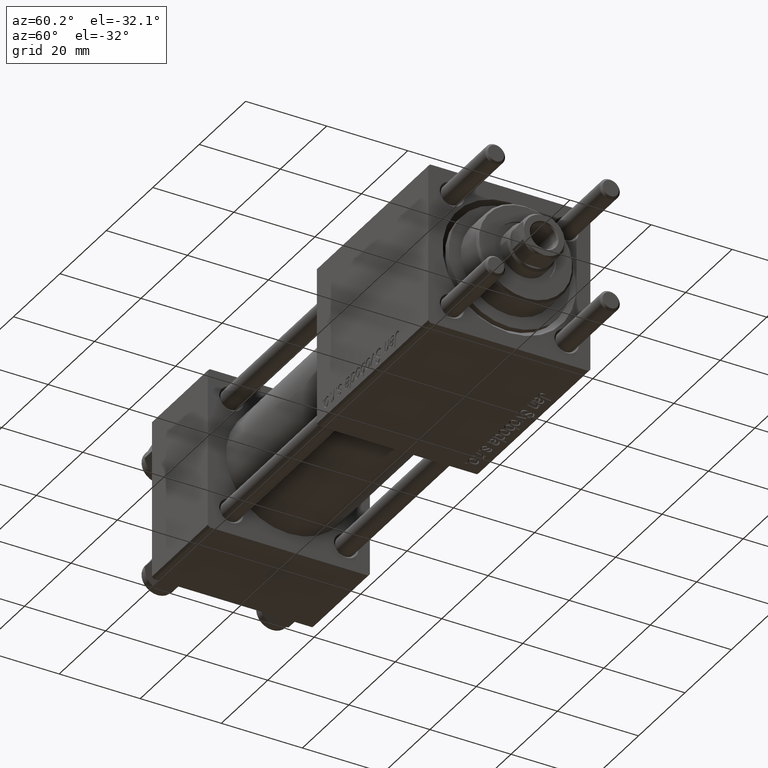
[diagram: clean part render]
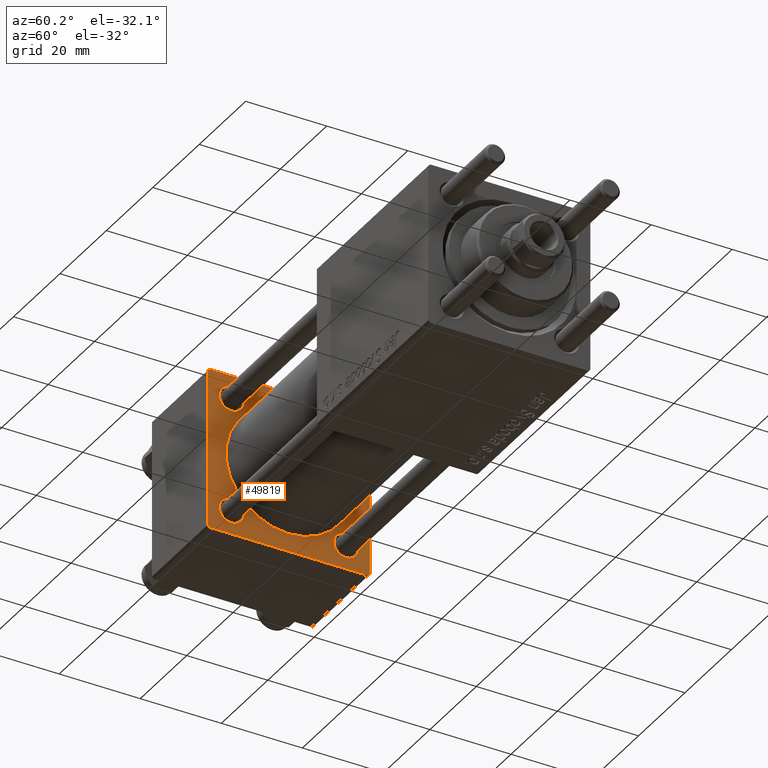
[diagram: same view with one face highlighted and labeled with its STEP entity id]
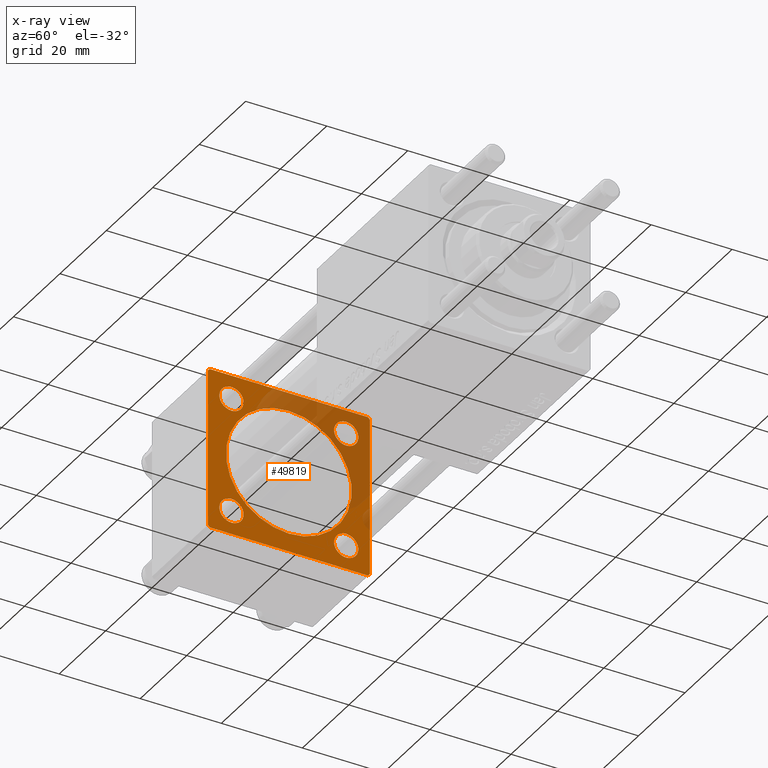
[diagram: x-ray of the same camera — body ghosted, the highlighted face saturated]
A machine part, auxiliary view. The second image highlights one B-rep face of the part: STEP entity #49819.
The next image is the same camera in x-ray: the body ghosted, the highlighted face saturated — about 32% of this face is hidden behind the body in this view.
In plain terms, the highlighted planar face has unit normal (-1, 0, 0).
Its self-contained STEP definition (entity closure, byte-faithful):
#128 = DIRECTION ( 'NONE',  ( -1.000000000000000000, -0.000000000000000000, -0.000000000000000000 ) ) ;
#132 = VECTOR ( 'NONE', #16307, 1000.000000000000000 ) ;
#511 = EDGE_CURVE ( 'NONE', #42500, #33512, #22428, .T. ) ;
#925 = AXIS2_PLACEMENT_3D ( 'NONE', #51825, #16252, #47812 ) ;
#1067 = EDGE_CURVE ( 'NONE', #15590, #41594, #18827, .T. ) ;
#1165 = VERTEX_POINT ( 'NONE', #52244 ) ;
#1591 = ORIENTED_EDGE ( 'NONE', *, *, #19843, .T. ) ;
#1783 = DIRECTION ( 'NONE',  ( 0.000000000000000000, 0.000000000000000000, 1.000000000000000000 ) ) ;
#2221 = AXIS2_PLACEMENT_3D ( 'NONE', #25719, #7680, #38924 ) ;
#2244 = CARTESIAN_POINT ( 'NONE',  ( 24.00000000000000000, -14.14999999999999503, 14.15000000000000391 ) ) ;
#2322 = EDGE_CURVE ( 'NONE', #35675, #16254, #23401, .T. ) ;
#2517 = EDGE_LOOP ( 'NONE', ( #3678, #41603 ) ) ;
#3333 = PLANE ( 'NONE',  #45700 ) ;
#3678 = ORIENTED_EDGE ( 'NONE', *, *, #2322, .T. ) ;
#3758 = CARTESIAN_POINT ( 'NONE',  ( 24.00000000000000000, 20.00000000000000000, -19.50000000000002132 ) ) ;
#4039 = LINE ( 'NONE', #3758, #16350 ) ;
#4230 = CARTESIAN_POINT ( 'NONE',  ( 24.00000000000000000, 20.00000000000000000, -19.50000000000002132 ) ) ;
#4286 = DIRECTION ( 'NONE',  ( 0.000000000000000000, 0.000000000000000000, 1.000000000000000000 ) ) ;
#4531 = EDGE_CURVE ( 'NONE', #27124, #29716, #4039, .T. ) ;
#4918 = ORIENTED_EDGE ( 'NONE', *, *, #19863, .T. ) ;
#4986 = VERTEX_POINT ( 'NONE', #47766 ) ;
#7238 = EDGE_CURVE ( 'NONE', #1165, #20543, #51223, .T. ) ;
#7344 = VECTOR ( 'NONE', #56791, 1000.000000000000000 ) ;
#7404 = ORIENTED_EDGE ( 'NONE', *, *, #8013, .T. ) ;
#7680 = DIRECTION ( 'NONE',  ( 1.000000000000000000, 0.000000000000000000, 0.000000000000000000 ) ) ;
#7729 = CARTESIAN_POINT ( 'NONE',  ( 24.00000000000000000, 14.14999999999999858, 11.15000000000002700 ) ) ;
#8013 = EDGE_CURVE ( 'NONE', #22103, #18522, #38925, .T. ) ;
#8364 = DIRECTION ( 'NONE',  ( -0.000000000000000000, 0.7071067811865524577, 0.7071067811865426878 ) ) ;
#8609 = DIRECTION ( 'NONE',  ( -1.000000000000000000, -0.000000000000000000, -0.000000000000000000 ) ) ;
#8786 = CARTESIAN_POINT ( 'NONE',  ( 24.00000000000000000, 0.000000000000000000, 0.000000000000000000 ) ) ;
#9710 = ORIENTED_EDGE ( 'NONE', *, *, #7238, .T. ) ;
#10119 = CARTESIAN_POINT ( 'NONE',  ( 24.00000000000000000, -20.00000000000000355, 19.99999999999998934 ) ) ;
#10169 = EDGE_CURVE ( 'NONE', #4986, #29716, #47633, .T. ) ;
#10492 = DIRECTION ( 'NONE',  ( 0.000000000000000000, -1.000000000000000000, 1.734723475976807094E-16 ) ) ;
#10878 = AXIS2_PLACEMENT_3D ( 'NONE', #15297, #32779, #50306 ) ;
#11687 = DIRECTION ( 'NONE',  ( 0.000000000000000000, -0.7071067811865425767, 0.7071067811865525687 ) ) ;
#12188 = EDGE_LOOP ( 'NONE', ( #16168, #43564 ) ) ;
#12245 = DIRECTION ( 'NONE',  ( 0.000000000000000000, 0.000000000000000000, 1.000000000000000000 ) ) ;
#12491 = CARTESIAN_POINT ( 'NONE',  ( 24.00000000000000000, 14.14999999999999858, -14.15000000000000036 ) ) ;
#12567 = LINE ( 'NONE', #33800, #21211 ) ;
#13088 = FACE_BOUND ( 'NONE', #13321, .T. ) ;
#13321 = EDGE_LOOP ( 'NONE', ( #19512, #33985 ) ) ;
#14390 = VECTOR ( 'NONE', #10492, 1000.000000000000000 ) ;
#14444 = ORIENTED_EDGE ( 'NONE', *, *, #44357, .T. ) ;
#15297 = CARTESIAN_POINT ( 'NONE',  ( 24.00000000000000000, -14.14999999999999503, 14.15000000000000391 ) ) ;
#15563 = CARTESIAN_POINT ( 'NONE',  ( 24.00000000000000000, 14.14999999999999858, -11.15000000000002700 ) ) ;
#15590 = VERTEX_POINT ( 'NONE', #24841 ) ;
#15592 = CIRCLE ( 'NONE', #26537, 15.50000000000000000 ) ;
#15653 = EDGE_CURVE ( 'NONE', #16254, #35675, #27471, .T. ) ;
#15880 = CARTESIAN_POINT ( 'NONE',  ( 24.00000000000000000, -20.00000000000000355, 19.49999999999998224 ) ) ;
#16168 = ORIENTED_EDGE ( 'NONE', *, *, #1067, .T. ) ;
#16252 = DIRECTION ( 'NONE',  ( -1.000000000000000000, -0.000000000000000000, -0.000000000000000000 ) ) ;
#16254 = VERTEX_POINT ( 'NONE', #25470 ) ;
#16307 = DIRECTION ( 'NONE',  ( 0.000000000000000000, 8.673617379884036705E-17, -1.000000000000000000 ) ) ;
#16350 = VECTOR ( 'NONE', #8364, 1000.000000000000000 ) ;
#17104 = CARTESIAN_POINT ( 'NONE',  ( 24.00000000000000000, -14.14999999999999503, -14.15000000000000391 ) ) ;
#17291 = CARTESIAN_POINT ( 'NONE',  ( 24.00000000000000000, -14.14999999999999503, 17.15000000000000924 ) ) ;
#17937 = DIRECTION ( 'NONE',  ( -1.000000000000000000, -0.000000000000000000, -0.000000000000000000 ) ) ;
#18097 = ORIENTED_EDGE ( 'NONE', *, *, #48857, .F. ) ;
#18286 = VECTOR ( 'NONE', #39507, 1000.000000000000114 ) ;
#18522 = VERTEX_POINT ( 'NONE', #15880 ) ;
#18730 = AXIS2_PLACEMENT_3D ( 'NONE', #31544, #8609, #4286 ) ;
#18733 = ORIENTED_EDGE ( 'NONE', *, *, #10169, .F. ) ;
#18827 = CIRCLE ( 'NONE', #20654, 2.999999999999976463 ) ;
#18841 = CARTESIAN_POINT ( 'NONE',  ( 24.00000000000000000, 14.14999999999999858, 14.15000000000000036 ) ) ;
#19512 = ORIENTED_EDGE ( 'NONE', *, *, #28569, .T. ) ;
#19545 = EDGE_CURVE ( 'NONE', #41594, #15590, #40471, .T. ) ;
#19586 = CARTESIAN_POINT ( 'NONE',  ( 24.00000000000000000, 14.14999999999999858, 17.14999999999997726 ) ) ;
#19839 = EDGE_LOOP ( 'NONE', ( #23303, #44438, #18733, #14444, #31980, #7404, #1591, #4918 ) ) ;
#19843 = EDGE_CURVE ( 'NONE', #18522, #49567, #49430, .T. ) ;
#19863 = EDGE_CURVE ( 'NONE', #49567, #48618, #12567, .T. ) ;
#19982 = CARTESIAN_POINT ( 'NONE',  ( 24.00000000000000000, -7.038826752868131828E-16, -15.50000000000000000 ) ) ;
#20543 = VERTEX_POINT ( 'NONE', #17291 ) ;
#20654 = AXIS2_PLACEMENT_3D ( 'NONE', #24405, #41090, #1783 ) ;
#21211 = VECTOR ( 'NONE', #28144, 1000.000000000000000 ) ;
#21449 = CIRCLE ( 'NONE', #2221, 15.50000000000000000 ) ;
#21680 = DIRECTION ( 'NONE',  ( -0.000000000000000000, 0.000000000000000000, 1.000000000000000000 ) ) ;
#21716 = CARTESIAN_POINT ( 'NONE',  ( 24.00000000000000000, -20.00000000000000355, 19.49999999999998224 ) ) ;
#21775 = CARTESIAN_POINT ( 'NONE',  ( 24.00000000000000000, 20.00000000000000000, 20.00000000000000000 ) ) ;
#21917 = DIRECTION ( 'NONE',  ( 0.000000000000000000, 0.000000000000000000, 1.000000000000000000 ) ) ;
#22103 = VERTEX_POINT ( 'NONE', #55718 ) ;
#22428 = CIRCLE ( 'NONE', #27937, 2.999999999999973355 ) ;
#23303 = ORIENTED_EDGE ( 'NONE', *, *, #41307, .F. ) ;
#23401 = CIRCLE ( 'NONE', #35325, 3.000000000000004441 ) ;
#24405 = CARTESIAN_POINT ( 'NONE',  ( 24.00000000000000000, 14.14999999999999858, -14.15000000000000036 ) ) ;
#24691 = VERTEX_POINT ( 'NONE', #39060 ) ;
#24841 = CARTESIAN_POINT ( 'NONE',  ( 24.00000000000000000, 14.14999999999999858, -17.14999999999997726 ) ) ;
#25470 = CARTESIAN_POINT ( 'NONE',  ( 24.00000000000000000, -14.14999999999999503, -11.15000000000000036 ) ) ;
#25682 = FACE_BOUND ( 'NONE', #12188, .T. ) ;
#25719 = CARTESIAN_POINT ( 'NONE',  ( 24.00000000000000000, -2.602085213965210642E-15, 0.000000000000000000 ) ) ;
#26229 = DIRECTION ( 'NONE',  ( 0.000000000000000000, 0.000000000000000000, 1.000000000000000000 ) ) ;
#26445 = AXIS2_PLACEMENT_3D ( 'NONE', #2244, #128, #21917 ) ;
#26537 = AXIS2_PLACEMENT_3D ( 'NONE', #38595, #39165, #42915 ) ;
#27124 = VERTEX_POINT ( 'NONE', #49084 ) ;
#27237 = CARTESIAN_POINT ( 'NONE',  ( 24.00000000000000000, 20.00000000000000000, 20.00000000000000000 ) ) ;
#27471 = CIRCLE ( 'NONE', #925, 3.000000000000004441 ) ;
#27718 = EDGE_CURVE ( 'NONE', #51841, #30032, #21449, .T. ) ;
#27937 = AXIS2_PLACEMENT_3D ( 'NONE', #18841, #49001, #40362 ) ;
#28075 = LINE ( 'NONE', #27237, #33873 ) ;
#28144 = DIRECTION ( 'NONE',  ( 0.000000000000000000, 0.7071067811865401342, -0.7071067811865549002 ) ) ;
#28569 = EDGE_CURVE ( 'NONE', #33512, #42500, #43459, .T. ) ;
#29706 = FACE_BOUND ( 'NONE', #2517, .T. ) ;
#29716 = VERTEX_POINT ( 'NONE', #4230 ) ;
#29717 = LINE ( 'NONE', #47269, #33754 ) ;
#30032 = VERTEX_POINT ( 'NONE', #44324 ) ;
#30272 = FACE_BOUND ( 'NONE', #38251, .T. ) ;
#30334 = CARTESIAN_POINT ( 'NONE',  ( 24.00000000000000000, -19.50000000000000711, -20.00000000000000000 ) ) ;
#30557 = DIRECTION ( 'NONE',  ( -1.000000000000000000, 0.000000000000000000, -0.000000000000000000 ) ) ;
#31112 = ORIENTED_EDGE ( 'NONE', *, *, #27718, .F. ) ;
#31544 = CARTESIAN_POINT ( 'NONE',  ( 24.00000000000000000, 14.14999999999999858, 14.15000000000000036 ) ) ;
#31980 = ORIENTED_EDGE ( 'NONE', *, *, #48440, .T. ) ;
#32538 = ORIENTED_EDGE ( 'NONE', *, *, #44833, .T. ) ;
#32779 = DIRECTION ( 'NONE',  ( -1.000000000000000000, -0.000000000000000000, -0.000000000000000000 ) ) ;
#33512 = VERTEX_POINT ( 'NONE', #7729 ) ;
#33754 = VECTOR ( 'NONE', #11687, 999.9999999999998863 ) ;
#33800 = CARTESIAN_POINT ( 'NONE',  ( 24.00000000000000000, -19.50000000000000711, -20.00000000000000000 ) ) ;
#33873 = VECTOR ( 'NONE', #45061, 1000.000000000000000 ) ;
#33985 = ORIENTED_EDGE ( 'NONE', *, *, #511, .T. ) ;
#35325 = AXIS2_PLACEMENT_3D ( 'NONE', #17104, #55573, #12245 ) ;
#35675 = VERTEX_POINT ( 'NONE', #55207 ) ;
#37427 = LINE ( 'NONE', #55234, #14390 ) ;
#38251 = EDGE_LOOP ( 'NONE', ( #9710, #32538 ) ) ;
#38595 = CARTESIAN_POINT ( 'NONE',  ( 24.00000000000000000, -2.602085213965210642E-15, 0.000000000000000000 ) ) ;
#38924 = DIRECTION ( 'NONE',  ( 0.000000000000000000, 0.000000000000000000, 1.000000000000000000 ) ) ;
#38925 = LINE ( 'NONE', #21716, #18286 ) ;
#39060 = CARTESIAN_POINT ( 'NONE',  ( 24.00000000000000000, 19.50000000000000000, 20.00000000000000000 ) ) ;
#39165 = DIRECTION ( 'NONE',  ( 1.000000000000000000, 0.000000000000000000, 0.000000000000000000 ) ) ;
#39507 = DIRECTION ( 'NONE',  ( -0.000000000000000000, -0.7071067811865500152, -0.7071067811865451302 ) ) ;
#40362 = DIRECTION ( 'NONE',  ( 0.000000000000000000, 0.000000000000000000, 1.000000000000000000 ) ) ;
#40471 = CIRCLE ( 'NONE', #44138, 2.999999999999976463 ) ;
#41090 = DIRECTION ( 'NONE',  ( -1.000000000000000000, -0.000000000000000000, -0.000000000000000000 ) ) ;
#41307 = EDGE_CURVE ( 'NONE', #27124, #48618, #37427, .T. ) ;
#41594 = VERTEX_POINT ( 'NONE', #15563 ) ;
#41603 = ORIENTED_EDGE ( 'NONE', *, *, #15653, .T. ) ;
#42500 = VERTEX_POINT ( 'NONE', #19586 ) ;
#42915 = DIRECTION ( 'NONE',  ( 0.000000000000000000, 0.000000000000000000, 1.000000000000000000 ) ) ;
#43459 = CIRCLE ( 'NONE', #18730, 2.999999999999973355 ) ;
#43564 = ORIENTED_EDGE ( 'NONE', *, *, #19545, .T. ) ;
#44138 = AXIS2_PLACEMENT_3D ( 'NONE', #12491, #17937, #26229 ) ;
#44324 = CARTESIAN_POINT ( 'NONE',  ( 24.00000000000000000, -2.602085213965210642E-15, 15.50000000000000000 ) ) ;
#44357 = EDGE_CURVE ( 'NONE', #4986, #24691, #29717, .T. ) ;
#44438 = ORIENTED_EDGE ( 'NONE', *, *, #4531, .T. ) ;
#44833 = EDGE_CURVE ( 'NONE', #20543, #1165, #50285, .T. ) ;
#45061 = DIRECTION ( 'NONE',  ( 0.000000000000000000, -1.000000000000000000, -2.602085213965210149E-16 ) ) ;
#45700 = AXIS2_PLACEMENT_3D ( 'NONE', #8786, #30557, #21680 ) ;
#47269 = CARTESIAN_POINT ( 'NONE',  ( 24.00000000000000000, 19.50000000000000000, 20.00000000000000000 ) ) ;
#47633 = LINE ( 'NONE', #21775, #7344 ) ;
#47766 = CARTESIAN_POINT ( 'NONE',  ( 24.00000000000000000, 20.00000000000000000, 19.49999999999999289 ) ) ;
#47812 = DIRECTION ( 'NONE',  ( 0.000000000000000000, 0.000000000000000000, 1.000000000000000000 ) ) ;
#48440 = EDGE_CURVE ( 'NONE', #24691, #22103, #28075, .T. ) ;
#48618 = VERTEX_POINT ( 'NONE', #30334 ) ;
#48857 = EDGE_CURVE ( 'NONE', #30032, #51841, #15592, .T. ) ;
#49001 = DIRECTION ( 'NONE',  ( -1.000000000000000000, -0.000000000000000000, -0.000000000000000000 ) ) ;
#49084 = CARTESIAN_POINT ( 'NONE',  ( 24.00000000000000000, 19.50000000000000711, -20.00000000000000711 ) ) ;
#49430 = LINE ( 'NONE', #10119, #132 ) ;
#49567 = VERTEX_POINT ( 'NONE', #53036 ) ;
#49819 = ADVANCED_FACE ( 'NONE', ( #29706, #25682, #30272, #13088, #52683, #51555 ), #3333, .F. ) ;
#50285 = CIRCLE ( 'NONE', #10878, 3.000000000000004441 ) ;
#50306 = DIRECTION ( 'NONE',  ( 0.000000000000000000, 0.000000000000000000, 1.000000000000000000 ) ) ;
#51223 = CIRCLE ( 'NONE', #26445, 3.000000000000004441 ) ;
#51555 = FACE_OUTER_BOUND ( 'NONE', #19839, .T. ) ;
#51825 = CARTESIAN_POINT ( 'NONE',  ( 24.00000000000000000, -14.14999999999999503, -14.15000000000000391 ) ) ;
#51841 = VERTEX_POINT ( 'NONE', #19982 ) ;
#52244 = CARTESIAN_POINT ( 'NONE',  ( 24.00000000000000000, -14.14999999999999503, 11.15000000000000036 ) ) ;
#52683 = FACE_BOUND ( 'NONE', #53542, .T. ) ;
#53036 = CARTESIAN_POINT ( 'NONE',  ( 24.00000000000000000, -20.00000000000000000, -19.49999999999999645 ) ) ;
#53542 = EDGE_LOOP ( 'NONE', ( #18097, #31112 ) ) ;
#55207 = CARTESIAN_POINT ( 'NONE',  ( 24.00000000000000000, -14.14999999999999503, -17.15000000000000924 ) ) ;
#55234 = CARTESIAN_POINT ( 'NONE',  ( 24.00000000000000000, 20.00000000000000000, -20.00000000000000711 ) ) ;
#55573 = DIRECTION ( 'NONE',  ( -1.000000000000000000, -0.000000000000000000, -0.000000000000000000 ) ) ;
#55718 = CARTESIAN_POINT ( 'NONE',  ( 24.00000000000000000, -19.49999999999999289, 19.99999999999998934 ) ) ;
#56791 = DIRECTION ( 'NONE',  ( 0.000000000000000000, 0.000000000000000000, -1.000000000000000000 ) ) ;